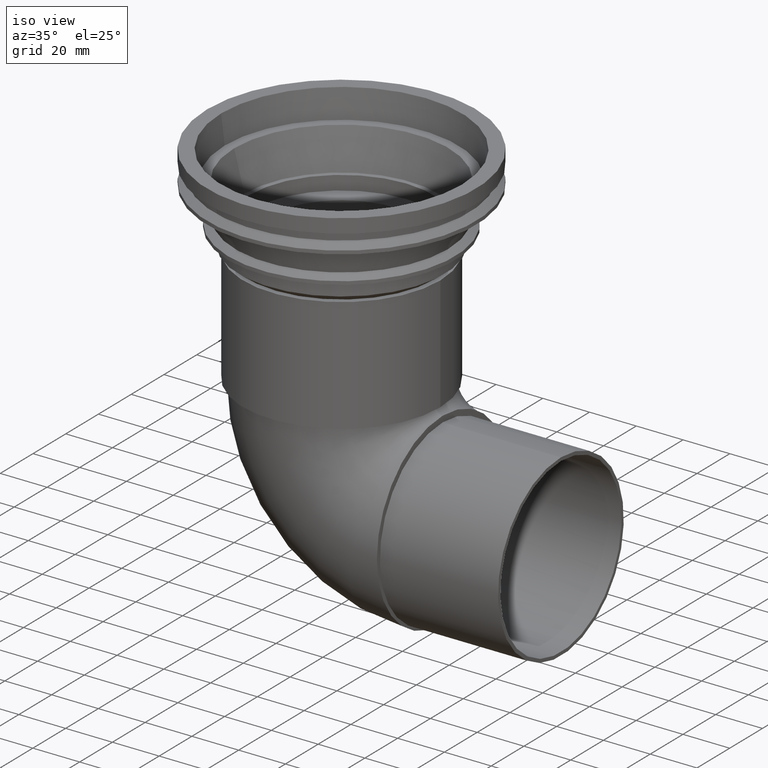
[diagram: clean part render]
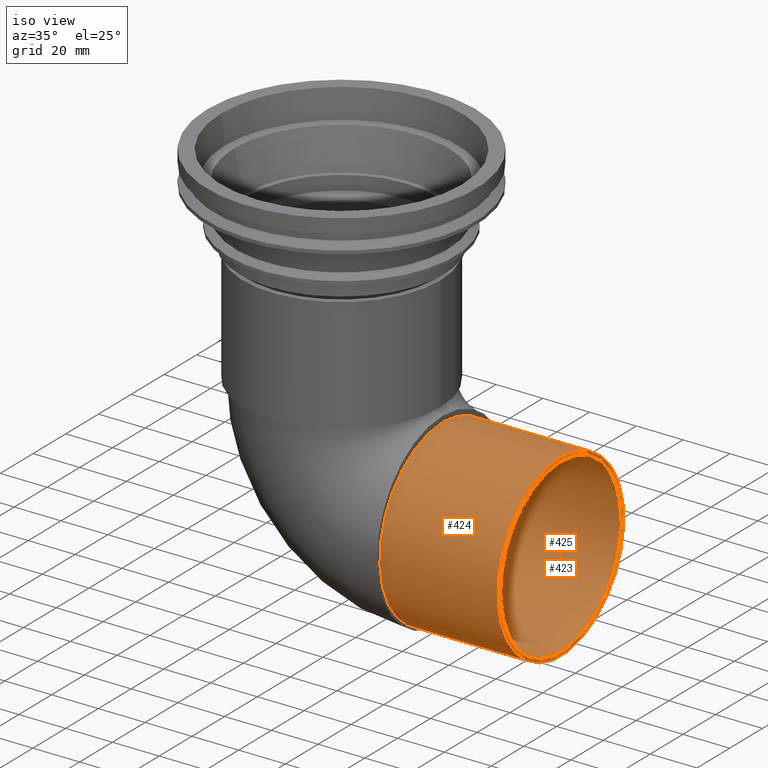
[diagram: same view with one multi-face feature highlighted, each face labeled with its STEP entity id]
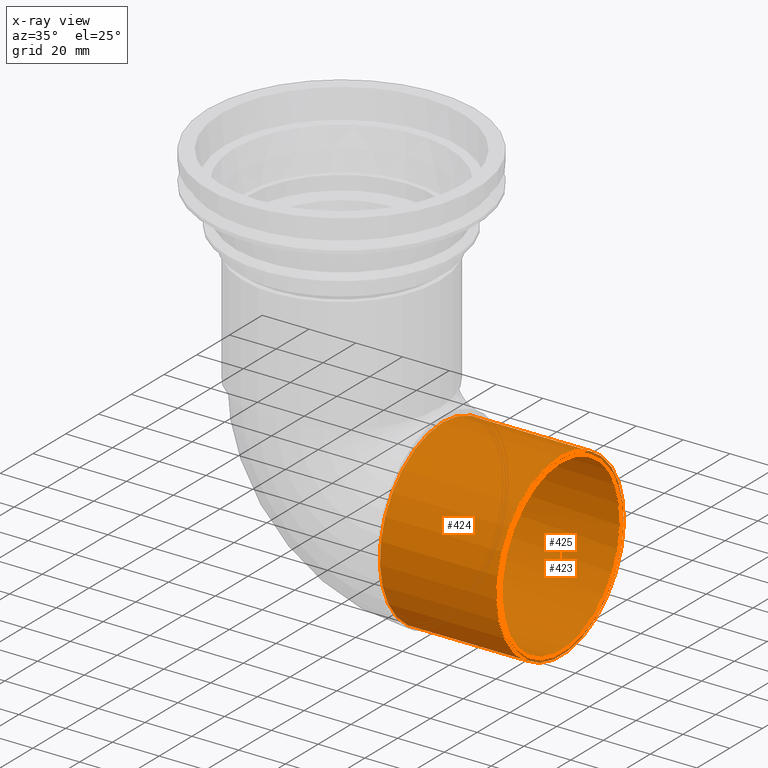
[diagram: x-ray of the same camera — body ghosted, the whole feature saturated]
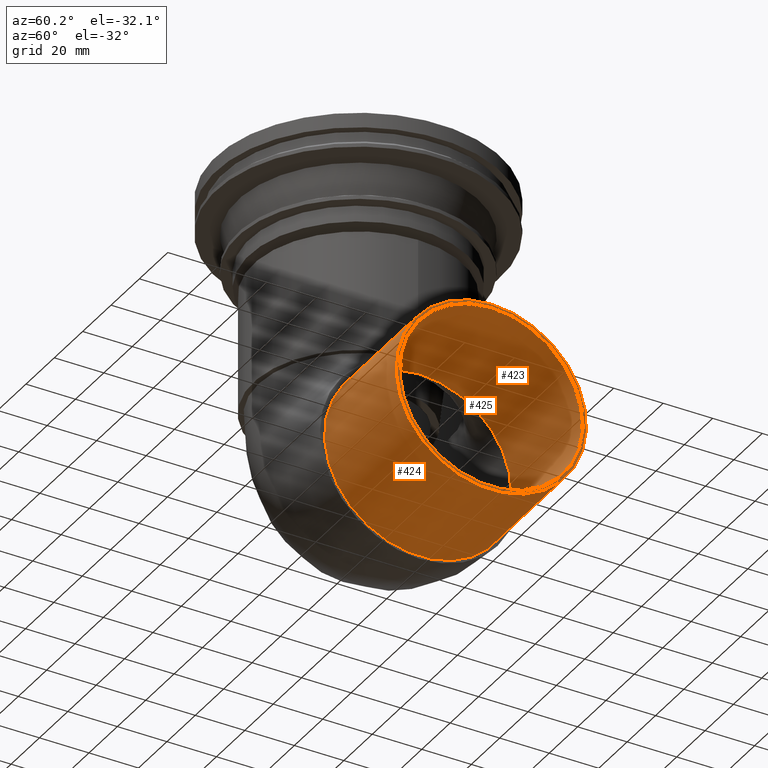
[diagram: same view with one multi-face feature highlighted, each face labeled with its STEP entity id]
A machine part, iso view. The highlighted faces form ONE feature: a stepped (counterbored) hole: 2 coaxial cylindrical walls of radii 36.95 -> 38.4 mm joined by 1 annular planar shoulder face(s). The faces share edges in the B-rep.
The next image is the same camera in x-ray: the body ghosted and the whole hole feature saturated, so the bore chain is visible through the body.
A second angle (auxiliary view) of the same feature is appended — it is thin or edge-on in the first view.
Their STEP definitions:
[1] entity #424 (Cylinder):
#41=CYLINDRICAL_SURFACE('',#511,38.4);
#114=ORIENTED_EDGE('',*,*,#155,.T.);
#115=ORIENTED_EDGE('',*,*,#152,.F.);
#152=EDGE_CURVE('',#189,#189,#226,.T.);
#155=EDGE_CURVE('',#191,#191,#229,.T.);
#189=VERTEX_POINT('',#768);
#191=VERTEX_POINT('',#776);
#226=CIRCLE('',#506,38.4);
#229=CIRCLE('',#512,38.4);
#298=EDGE_LOOP('',(#114));
#299=EDGE_LOOP('',(#115));
#370=FACE_BOUND('',#298,.T.);
#371=FACE_BOUND('',#299,.T.);
#424=ADVANCED_FACE('',(#370,#371),#41,.T.);
#506=AXIS2_PLACEMENT_3D('',#767,#650,#651);
#511=AXIS2_PLACEMENT_3D('',#774,#660,#661);
#512=AXIS2_PLACEMENT_3D('',#775,#662,#663);
#650=DIRECTION('',(-1.,0.,0.));
#651=DIRECTION('',(0.,0.,1.));
#660=DIRECTION('',(-1.,0.,0.));
#661=DIRECTION('',(0.,0.,1.));
#662=DIRECTION('',(-1.,0.,0.));
#663=DIRECTION('',(0.,0.,1.));
#767=CARTESIAN_POINT('',(43.25,0.,-132.484));
#768=CARTESIAN_POINT('',(43.25,0.,-94.084));
#774=CARTESIAN_POINT('',(43.25,0.,-132.484));
#775=CARTESIAN_POINT('',(93.8,0.,-132.484));
#776=CARTESIAN_POINT('',(93.8,0.,-94.084));
[2] entity #423 (Cylinder):
#40=CYLINDRICAL_SURFACE('',#509,36.95);
#111=ORIENTED_EDGE('',*,*,#119,.F.);
#112=ORIENTED_EDGE('',*,*,#153,.T.);
#113=ORIENTED_EDGE('',*,*,#154,.F.);
#119=EDGE_CURVE('',#157,#156,#193,.F.);
#153=EDGE_CURVE('',#157,#156,#227,.T.);
#154=EDGE_CURVE('',#190,#190,#228,.T.);
#156=VERTEX_POINT('',#669);
#157=VERTEX_POINT('',#670);
#190=VERTEX_POINT('',#773);
#193=CIRCLE('',#441,36.95);
#227=CIRCLE('',#508,36.95);
#228=CIRCLE('',#510,36.95);
#296=EDGE_LOOP('',(#111,#112));
#297=EDGE_LOOP('',(#113));
#368=FACE_BOUND('',#296,.T.);
#369=FACE_BOUND('',#297,.T.);
#423=ADVANCED_FACE('',(#368,#369),#40,.F.);
#441=AXIS2_PLACEMENT_3D('',#671,#520,#521);
#508=AXIS2_PLACEMENT_3D('',#770,#654,#655);
#509=AXIS2_PLACEMENT_3D('',#771,#656,#657);
#510=AXIS2_PLACEMENT_3D('',#772,#658,#659);
#520=DIRECTION('',(-1.,0.,6.12323399573677E-17));
#521=DIRECTION('',(6.12323399573677E-17,0.,1.));
#654=DIRECTION('',(-1.,0.,0.));
#655=DIRECTION('',(0.,0.,1.));
#656=DIRECTION('',(-1.,0.,0.));
#657=DIRECTION('',(0.,0.,1.));
#658=DIRECTION('',(-1.,0.,0.));
#659=DIRECTION('',(0.,0.,1.));
#669=CARTESIAN_POINT('',(43.25,36.9392330960458,-133.375940735695));
#670=CARTESIAN_POINT('',(43.25,-36.9392330960458,-133.375940735695));
#671=CARTESIAN_POINT('',(43.25,0.,-132.484));
#770=CARTESIAN_POINT('',(43.25,0.,-132.484));
#771=CARTESIAN_POINT('',(43.25,0.,-132.484));
#772=CARTESIAN_POINT('',(93.8,0.,-132.484));
#773=CARTESIAN_POINT('',(93.8,0.,-95.534));
[3] entity #425 (Plane):
#116=ORIENTED_EDGE('',*,*,#154,.T.);
#117=ORIENTED_EDGE('',*,*,#155,.F.);
#154=EDGE_CURVE('',#190,#190,#228,.T.);
#155=EDGE_CURVE('',#191,#191,#229,.T.);
#190=VERTEX_POINT('',#773);
#191=VERTEX_POINT('',#776);
#228=CIRCLE('',#510,36.95);
#229=CIRCLE('',#512,38.4);
#300=EDGE_LOOP('',(#116));
#301=EDGE_LOOP('',(#117));
#372=FACE_BOUND('',#300,.T.);
#373=FACE_BOUND('',#301,.T.);
#388=PLANE('',#513);
#425=ADVANCED_FACE('',(#372,#373),#388,.T.);
#510=AXIS2_PLACEMENT_3D('',#772,#658,#659);
#512=AXIS2_PLACEMENT_3D('',#775,#662,#663);
#513=AXIS2_PLACEMENT_3D('',#777,#664,#665);
#658=DIRECTION('',(-1.,0.,0.));
#659=DIRECTION('',(0.,0.,1.));
#662=DIRECTION('',(-1.,0.,0.));
#663=DIRECTION('',(0.,0.,1.));
#664=DIRECTION('',(1.,0.,0.));
#665=DIRECTION('',(0.,0.,-1.));
#772=CARTESIAN_POINT('',(93.8,0.,-132.484));
#773=CARTESIAN_POINT('',(93.8,0.,-95.534));
#775=CARTESIAN_POINT('',(93.8,0.,-132.484));
#776=CARTESIAN_POINT('',(93.8,0.,-94.084));
#777=CARTESIAN_POINT('',(93.8,0.,-94.084));